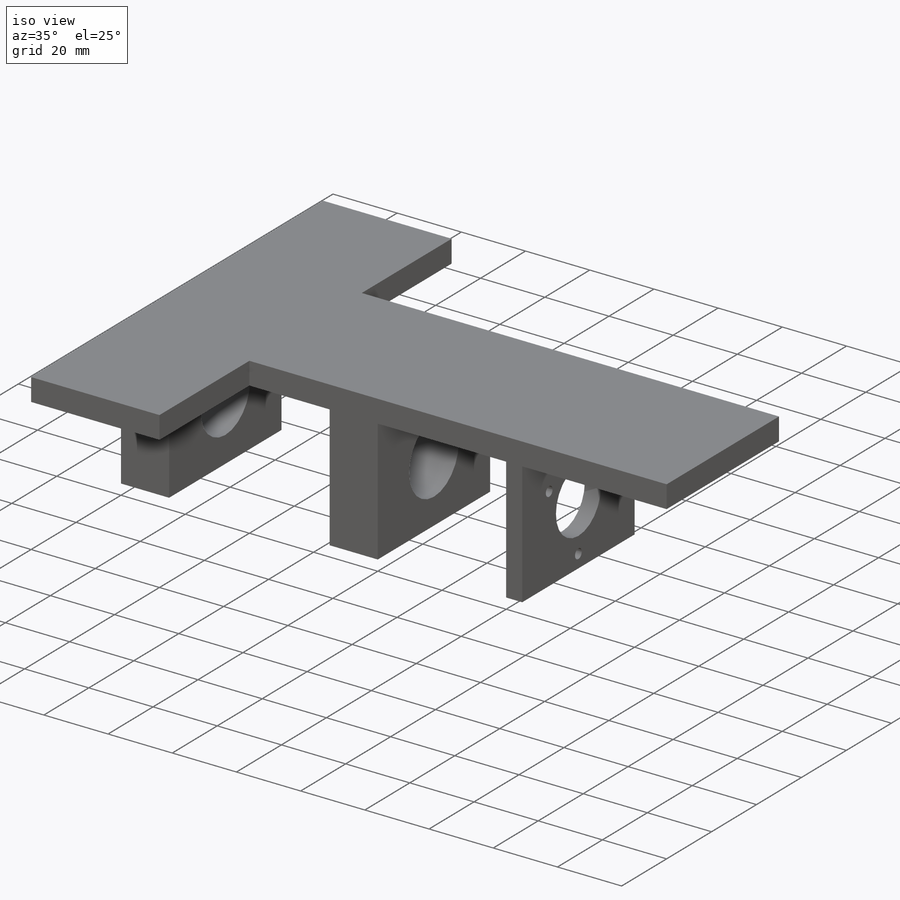
[diagram: iso view]
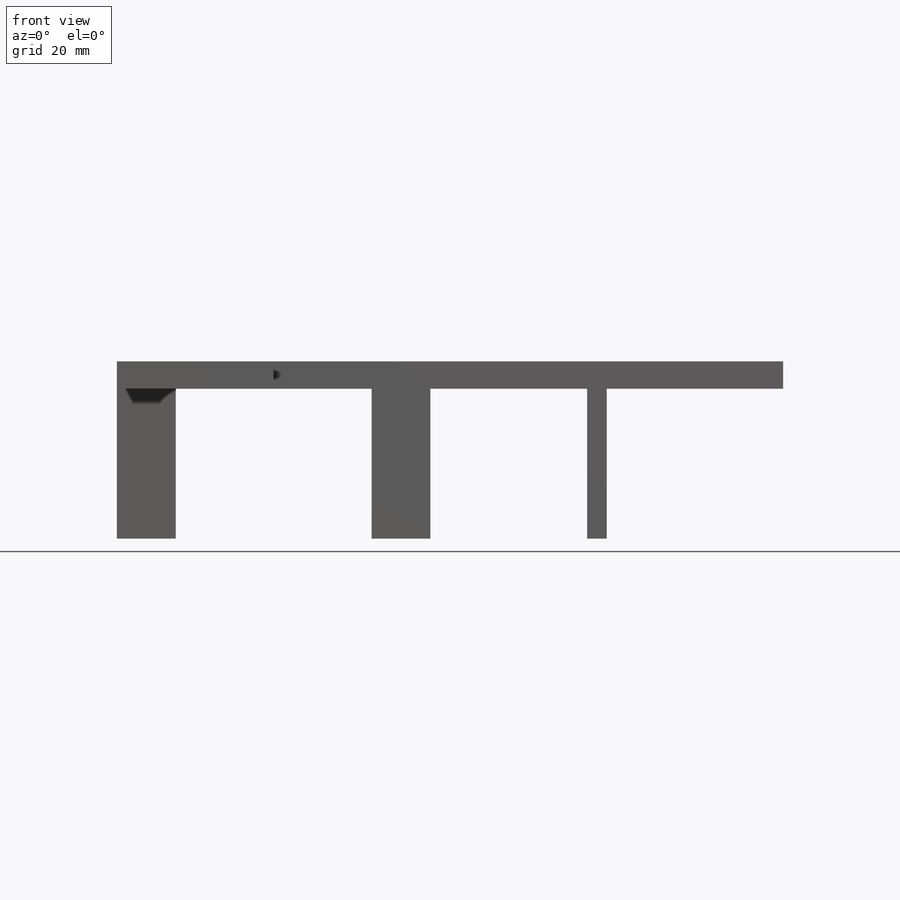
[diagram: front view]
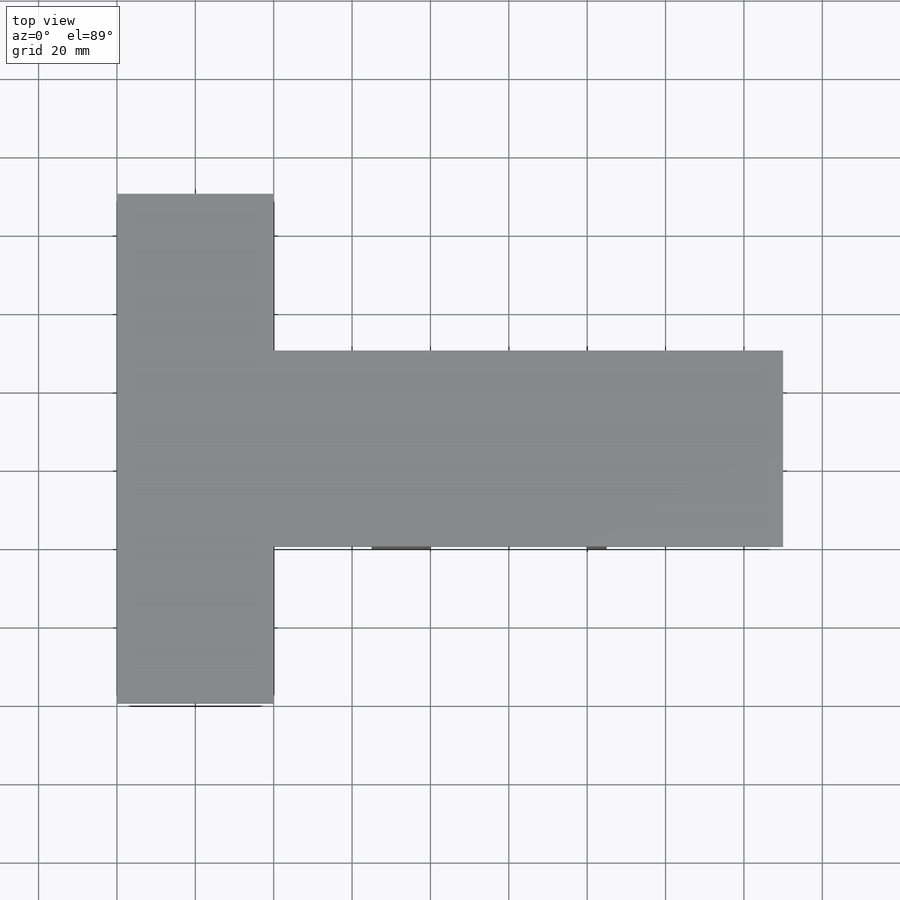
[diagram: top view]
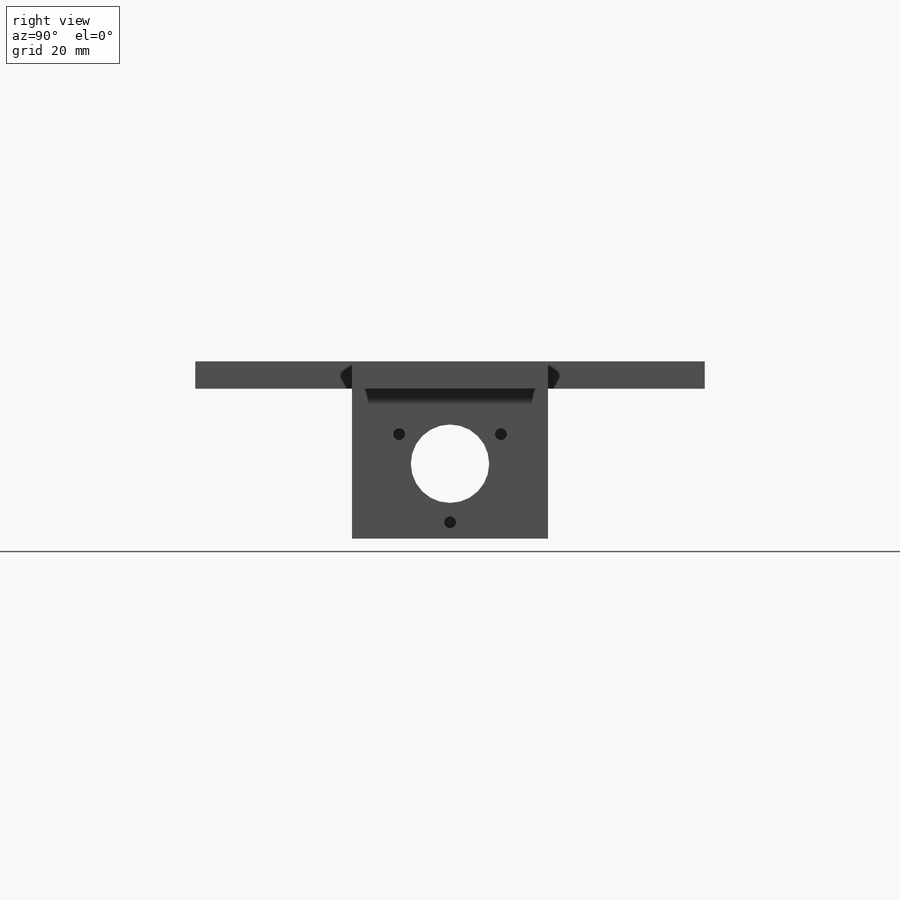
[diagram: right view]
SOLIDWORKS PART (.sldprt)
format: sldprt  version: not decoded by parser v0  size: 241,664 bytes
history: native  units: mm
features: sketch x6, cut_extrude x4, extrude x2, material x1, plane x1 (+16 scaffold rows collapsed)
feature tree (30):
  scaffold x16  (default folders/planes/origin — collapsed)
  material  "Material <not specified>"
  sketch  "Sketch1"  dims[D1=50.0mm D2=170.0mm D3=40.0mm D4=40.0mm D5=40.0mm D6=40.0mm D7=40.0mm D8=40.0mm]
  extrude  "Boss-Extrude2"  Depth=7mm
  sketch  "Sketch2"  dims[c1.D1=10.0mm c1.D2=15.0mm c1.D3=15.0mm c1.D4=0.0mm c2.D1=30.0mm c2.D5=5.0mm c2.D6=~14.999909mm c3.D5=5.0mm c3.D6=15.0mm c4.D5=50.0mm c4.D7=5.0mm c4.D8=70.0mm c4.D9=120.0mm c4.D10=50.0mm c4.D11=5.0mm c4.D12=15.0mm c4.D13=30.0mm c4.D2=15.0mm c4.D3=30.0mm c4.D4=30.0mm c5.D5=10.0mm c5.D6=10.0mm c5.D2=50.0mm c5.D3=15.0mm c5.D4=50.0mm c5.D7=15.0mm c6.D5=0.0mm c6.D6=50.0mm c6.D8=40.0mm c6.D9=170.0mm]
  extrude  "Boss-Extrude4"  Depth=38.25mm
  sketch  "Sketch10"  dims[D1=~7.135512mm]
  cut_extrude  "Cut-Extrude5"  Depth=15mm
  sketch  "Sketch11"  dims[D1=~3.079505mm]
  cut_extrude  "Cut-Extrude7"  Depth=15mm
  sketch  "Sketch12"  dims[D1=~1.867382mm]
  sketch  "Sketch23"  dims[D1=~1.910376mm]
  cut_extrude  "Cut-Extrude10"  Depth=5mm
  cut_extrude  "Cut-Extrude9"  Depth=5mm
  plane  "Plane8"
decode coverage: 12 of 12 modeling features carry decoded parameters
note: ~ marks probable driven/reference dimensions
note: suppression state not decoded; provenance and decode notes live in map.json
